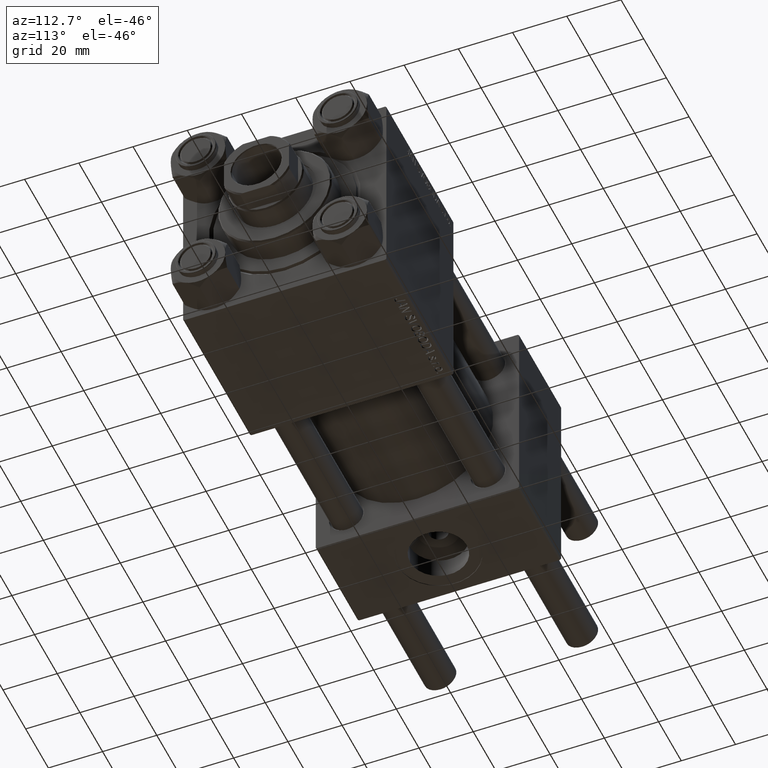
[diagram: clean part render]
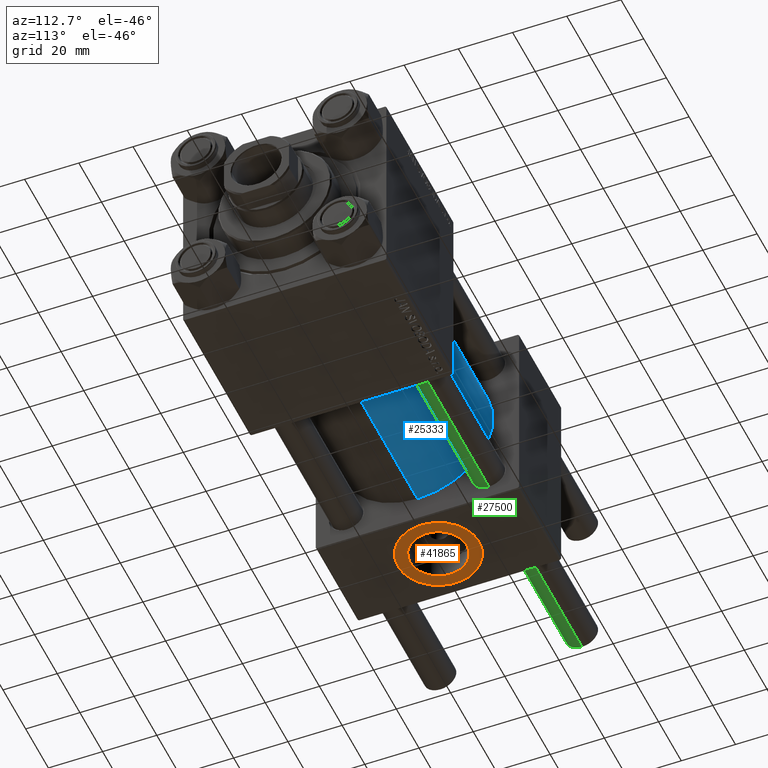
[diagram: same view with three faces highlighted in distinct colors, each labeled with its STEP entity id]
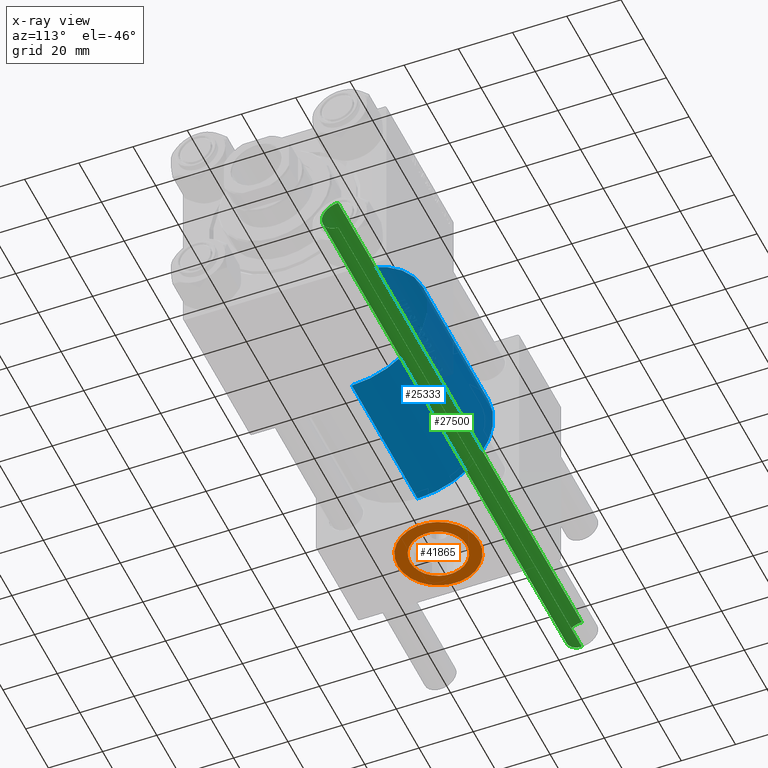
[diagram: x-ray of the same camera — body ghosted, the three highlighted faces saturated]
A machine part, auxiliary view with three faces highlighted in distinct colors.
The next image is the same camera in x-ray (body ghosted, the three faces saturated) — at least one of them is partly hidden behind the body in this view.
Their STEP definitions:

[orange] entity #41865 — the highlighted planar face has unit normal (0, -0, -1).
#1418 = CARTESIAN_POINT ( 'NONE',  ( 18.50000000000000000, 15.00000000000000178, -37.30000000000000426 ) ) ;
#4001 = FACE_OUTER_BOUND ( 'NONE', #48772, .T. ) ;
#4047 = ORIENTED_EDGE ( 'NONE', *, *, #10730, .F. ) ;
#5817 = AXIS2_PLACEMENT_3D ( 'NONE', #11810, #19345, #16077 ) ;
#6703 = CARTESIAN_POINT ( 'NONE',  ( 18.50000000000000000, 2.034565262496326581E-15, -37.30000000000000426 ) ) ;
#7009 = EDGE_CURVE ( 'NONE', #30828, #13720, #38472, .T. ) ;
#8025 = FACE_BOUND ( 'NONE', #27080, .T. ) ;
#8069 = VERTEX_POINT ( 'NONE', #29175 ) ;
#9584 = AXIS2_PLACEMENT_3D ( 'NONE', #26619, #37944, #49507 ) ;
#10593 = CIRCLE ( 'NONE', #18644, 15.00000000000000000 ) ;
#10730 = EDGE_CURVE ( 'NONE', #13720, #30828, #40949, .T. ) ;
#10733 = DIRECTION ( 'NONE',  ( 0.000000000000000000, 1.000000000000000000, 0.000000000000000000 ) ) ;
#11431 = ORIENTED_EDGE ( 'NONE', *, *, #7009, .F. ) ;
#11810 = CARTESIAN_POINT ( 'NONE',  ( 18.50000000000000000, 2.034565262496326581E-15, -37.30000000000000426 ) ) ;
#11974 = CARTESIAN_POINT ( 'NONE',  ( 18.50000000000000000, 10.48000000000000220, -37.30000000000000426 ) ) ;
#13107 = DIRECTION ( 'NONE',  ( 0.000000000000000000, -1.734723475976806848E-16, -1.000000000000000000 ) ) ;
#13720 = VERTEX_POINT ( 'NONE', #46380 ) ;
#16077 = DIRECTION ( 'NONE',  ( 0.000000000000000000, 1.000000000000000000, -1.734723475976806848E-16 ) ) ;
#16202 = DIRECTION ( 'NONE',  ( 0.000000000000000000, -1.734723475976806848E-16, -1.000000000000000000 ) ) ;
#16977 = EDGE_CURVE ( 'NONE', #18535, #8069, #10593, .T. ) ;
#18535 = VERTEX_POINT ( 'NONE', #1418 ) ;
#18644 = AXIS2_PLACEMENT_3D ( 'NONE', #43112, #16202, #39595 ) ;
#19345 = DIRECTION ( 'NONE',  ( 0.000000000000000000, -1.734723475976806848E-16, -1.000000000000000000 ) ) ;
#21606 = EDGE_CURVE ( 'NONE', #8069, #18535, #42738, .T. ) ;
#25812 = ORIENTED_EDGE ( 'NONE', *, *, #21606, .T. ) ;
#26414 = AXIS2_PLACEMENT_3D ( 'NONE', #6703, #44693, #10733 ) ;
#26619 = CARTESIAN_POINT ( 'NONE',  ( 18.50000000000000000, 2.034565262496326581E-15, -37.30000000000000426 ) ) ;
#27080 = EDGE_LOOP ( 'NONE', ( #11431, #4047 ) ) ;
#29091 = AXIS2_PLACEMENT_3D ( 'NONE', #31988, #13107, #48055 ) ;
#29175 = CARTESIAN_POINT ( 'NONE',  ( 18.50000000000000355, -14.99999999999999822, -37.30000000000000426 ) ) ;
#30828 = VERTEX_POINT ( 'NONE', #11974 ) ;
#31988 = CARTESIAN_POINT ( 'NONE',  ( 18.50000000000000000, 2.034565262496326581E-15, -37.30000000000000426 ) ) ;
#32119 = ORIENTED_EDGE ( 'NONE', *, *, #16977, .T. ) ;
#34459 = PLANE ( 'NONE',  #5817 ) ;
#37944 = DIRECTION ( 'NONE',  ( 0.000000000000000000, -1.734723475976806848E-16, -1.000000000000000000 ) ) ;
#38472 = CIRCLE ( 'NONE', #26414, 10.48000000000000043 ) ;
#39595 = DIRECTION ( 'NONE',  ( 0.000000000000000000, 1.000000000000000000, 0.000000000000000000 ) ) ;
#40949 = CIRCLE ( 'NONE', #9584, 10.48000000000000043 ) ;
#41865 = ADVANCED_FACE ( 'NONE', ( #8025, #4001 ), #34459, .T. ) ;
#42738 = CIRCLE ( 'NONE', #29091, 15.00000000000000000 ) ;
#43112 = CARTESIAN_POINT ( 'NONE',  ( 18.50000000000000000, 2.034565262496326581E-15, -37.30000000000000426 ) ) ;
#44693 = DIRECTION ( 'NONE',  ( 0.000000000000000000, -1.734723475976806848E-16, -1.000000000000000000 ) ) ;
#46380 = CARTESIAN_POINT ( 'NONE',  ( 18.50000000000000000, -10.47999999999999865, -37.30000000000000426 ) ) ;
#48055 = DIRECTION ( 'NONE',  ( 0.000000000000000000, 1.000000000000000000, 0.000000000000000000 ) ) ;
#48772 = EDGE_LOOP ( 'NONE', ( #32119, #25812 ) ) ;
#49507 = DIRECTION ( 'NONE',  ( 0.000000000000000000, 1.000000000000000000, 0.000000000000000000 ) ) ;

[blue] entity #25333 — the highlighted cylindrical surface (partial cylindrical patch) has radius 28 mm, axis along (-1, -0, -0).
#47 = EDGE_CURVE ( 'NONE', #7630, #21076, #2931, .T. ) ;
#2931 = LINE ( 'NONE', #18776, #47865 ) ;
#4517 = DIRECTION ( 'NONE',  ( 0.000000000000000000, 0.000000000000000000, 1.000000000000000000 ) ) ;
#7226 = EDGE_CURVE ( 'NONE', #49141, #7630, #20783, .T. ) ;
#7592 = DIRECTION ( 'NONE',  ( -1.000000000000000000, -0.000000000000000000, -0.000000000000000000 ) ) ;
#7630 = VERTEX_POINT ( 'NONE', #24950 ) ;
#8838 = CIRCLE ( 'NONE', #28910, 28.00000000000000000 ) ;
#11349 = ORIENTED_EDGE ( 'NONE', *, *, #47, .F. ) ;
#11545 = EDGE_CURVE ( 'NONE', #47206, #21076, #8838, .T. ) ;
#11611 = CARTESIAN_POINT ( 'NONE',  ( 95.00000000000000000, 0.000000000000000000, 0.000000000000000000 ) ) ;
#11718 = CARTESIAN_POINT ( 'NONE',  ( 95.00000000000000000, 3.429011037612588487E-15, -28.00000000000000000 ) ) ;
#13257 = ORIENTED_EDGE ( 'NONE', *, *, #11545, .T. ) ;
#15345 = CARTESIAN_POINT ( 'NONE',  ( 37.00000000000000000, 0.000000000000000000, 0.000000000000000000 ) ) ;
#16510 = ORIENTED_EDGE ( 'NONE', *, *, #7226, .F. ) ;
#18776 = CARTESIAN_POINT ( 'NONE',  ( 95.00000000000000000, 0.000000000000000000, 28.00000000000000000 ) ) ;
#20783 = CIRCLE ( 'NONE', #48903, 28.00000000000000000 ) ;
#21076 = VERTEX_POINT ( 'NONE', #47751 ) ;
#22901 = DIRECTION ( 'NONE',  ( 1.000000000000000000, -0.000000000000000000, 0.000000000000000000 ) ) ;
#23966 = LINE ( 'NONE', #31518, #31779 ) ;
#24950 = CARTESIAN_POINT ( 'NONE',  ( 95.00000000000000000, 0.000000000000000000, 28.00000000000000000 ) ) ;
#25333 = ADVANCED_FACE ( 'NONE', ( #30730 ), #38047, .T. ) ;
#25380 = EDGE_LOOP ( 'NONE', ( #16510, #45456, #13257, #11349 ) ) ;
#27994 = DIRECTION ( 'NONE',  ( -1.000000000000000000, -0.000000000000000000, -0.000000000000000000 ) ) ;
#28416 = AXIS2_PLACEMENT_3D ( 'NONE', #11611, #7592, #46073 ) ;
#28910 = AXIS2_PLACEMENT_3D ( 'NONE', #15345, #22901, #4517 ) ;
#30730 = FACE_OUTER_BOUND ( 'NONE', #25380, .T. ) ;
#30787 = CARTESIAN_POINT ( 'NONE',  ( 37.00000000000000000, 3.429011037612588487E-15, -28.00000000000000000 ) ) ;
#31518 = CARTESIAN_POINT ( 'NONE',  ( 95.00000000000000000, 3.429011037612588487E-15, -28.00000000000000000 ) ) ;
#31779 = VECTOR ( 'NONE', #27994, 1000.000000000000000 ) ;
#34122 = DIRECTION ( 'NONE',  ( -1.000000000000000000, -0.000000000000000000, -0.000000000000000000 ) ) ;
#34358 = EDGE_CURVE ( 'NONE', #49141, #47206, #23966, .T. ) ;
#38047 = CYLINDRICAL_SURFACE ( 'NONE', #28416, 28.00000000000000000 ) ;
#41363 = DIRECTION ( 'NONE',  ( 1.000000000000000000, 0.000000000000000000, 0.000000000000000000 ) ) ;
#41860 = DIRECTION ( 'NONE',  ( 0.000000000000000000, 0.000000000000000000, -1.000000000000000000 ) ) ;
#44876 = CARTESIAN_POINT ( 'NONE',  ( 95.00000000000000000, 0.000000000000000000, 0.000000000000000000 ) ) ;
#45456 = ORIENTED_EDGE ( 'NONE', *, *, #34358, .T. ) ;
#46073 = DIRECTION ( 'NONE',  ( 0.000000000000000000, 0.000000000000000000, 1.000000000000000000 ) ) ;
#47206 = VERTEX_POINT ( 'NONE', #30787 ) ;
#47751 = CARTESIAN_POINT ( 'NONE',  ( 37.00000000000000000, 0.000000000000000000, 28.00000000000000000 ) ) ;
#47865 = VECTOR ( 'NONE', #34122, 1000.000000000000000 ) ;
#48903 = AXIS2_PLACEMENT_3D ( 'NONE', #44876, #41363, #41860 ) ;
#49141 = VERTEX_POINT ( 'NONE', #11718 ) ;

[green] entity #27500 — the highlighted cylindrical surface (edge-blend (fillet) strip) has radius 6 mm, axis along (1, 0, -0).
#3331 = FACE_OUTER_BOUND ( 'NONE', #11848, .T. ) ;
#3581 = CARTESIAN_POINT ( 'NONE',  ( 0.000000000000000000, 0.000000000000000000, 216.0000000000000000 ) ) ;
#4614 = DIRECTION ( 'NONE',  ( -0.000000000000000000, -0.000000000000000000, -1.000000000000000000 ) ) ;
#4711 = AXIS2_PLACEMENT_3D ( 'NONE', #43526, #5290, #40012 ) ;
#5290 = DIRECTION ( 'NONE',  ( -0.000000000000000000, -0.000000000000000000, 1.000000000000000000 ) ) ;
#7073 = VERTEX_POINT ( 'NONE', #27319 ) ;
#8336 = DIRECTION ( 'NONE',  ( -0.000000000000000000, -0.000000000000000000, -1.000000000000000000 ) ) ;
#8395 = CARTESIAN_POINT ( 'NONE',  ( -6.000000000000000888, 0.000000000000000000, 0.5000000000000004441 ) ) ;
#8807 = ORIENTED_EDGE ( 'NONE', *, *, #8874, .T. ) ;
#8874 = EDGE_CURVE ( 'NONE', #14418, #38751, #15959, .T. ) ;
#9124 = CARTESIAN_POINT ( 'NONE',  ( -6.000000000000000888, 0.000000000000000000, 216.0000000000000000 ) ) ;
#10184 = EDGE_CURVE ( 'NONE', #16560, #7073, #40915, .T. ) ;
#11848 = EDGE_LOOP ( 'NONE', ( #20298, #29121, #25238, #8807 ) ) ;
#13640 = EDGE_CURVE ( 'NONE', #7073, #14418, #15701, .T. ) ;
#14418 = VERTEX_POINT ( 'NONE', #8395 ) ;
#15701 = LINE ( 'NONE', #9124, #43450 ) ;
#15959 = CIRCLE ( 'NONE', #4711, 6.000000000000000888 ) ;
#16560 = VERTEX_POINT ( 'NONE', #23132 ) ;
#18679 = CYLINDRICAL_SURFACE ( 'NONE', #49383, 6.000000000000000888 ) ;
#20298 = ORIENTED_EDGE ( 'NONE', *, *, #36758, .F. ) ;
#22222 = VECTOR ( 'NONE', #43688, 1000.000000000000000 ) ;
#23132 = CARTESIAN_POINT ( 'NONE',  ( 6.000000000000000888, 7.347880794884120722E-16, 215.5000000000000284 ) ) ;
#23682 = DIRECTION ( 'NONE',  ( -1.000000000000000000, 0.000000000000000000, 0.000000000000000000 ) ) ;
#25238 = ORIENTED_EDGE ( 'NONE', *, *, #13640, .T. ) ;
#26455 = AXIS2_PLACEMENT_3D ( 'NONE', #38122, #46394, #45659 ) ;
#27319 = CARTESIAN_POINT ( 'NONE',  ( -6.000000000000000888, 0.000000000000000000, 215.5000000000000284 ) ) ;
#27500 = ADVANCED_FACE ( 'NONE', ( #3331 ), #18679, .T. ) ;
#29121 = ORIENTED_EDGE ( 'NONE', *, *, #10184, .T. ) ;
#32619 = CARTESIAN_POINT ( 'NONE',  ( 6.000000000000000888, 7.347880794884120722E-16, 216.0000000000000000 ) ) ;
#36392 = LINE ( 'NONE', #32619, #22222 ) ;
#36758 = EDGE_CURVE ( 'NONE', #16560, #38751, #36392, .T. ) ;
#38122 = CARTESIAN_POINT ( 'NONE',  ( 0.000000000000000000, 0.000000000000000000, 215.5000000000000284 ) ) ;
#38751 = VERTEX_POINT ( 'NONE', #48777 ) ;
#40012 = DIRECTION ( 'NONE',  ( 1.000000000000000000, 0.000000000000000000, 0.000000000000000000 ) ) ;
#40915 = CIRCLE ( 'NONE', #26455, 6.000000000000000888 ) ;
#43450 = VECTOR ( 'NONE', #4614, 1000.000000000000000 ) ;
#43526 = CARTESIAN_POINT ( 'NONE',  ( 0.000000000000000000, 0.000000000000000000, 0.5000000000000004441 ) ) ;
#43688 = DIRECTION ( 'NONE',  ( -0.000000000000000000, -0.000000000000000000, -1.000000000000000000 ) ) ;
#45659 = DIRECTION ( 'NONE',  ( 1.000000000000000000, 0.000000000000000000, 0.000000000000000000 ) ) ;
#46394 = DIRECTION ( 'NONE',  ( 0.000000000000000000, 0.000000000000000000, -1.000000000000000000 ) ) ;
#48777 = CARTESIAN_POINT ( 'NONE',  ( 6.000000000000000888, 7.347880794884120722E-16, 0.5000000000000004441 ) ) ;
#49383 = AXIS2_PLACEMENT_3D ( 'NONE', #3581, #8336, #23682 ) ;